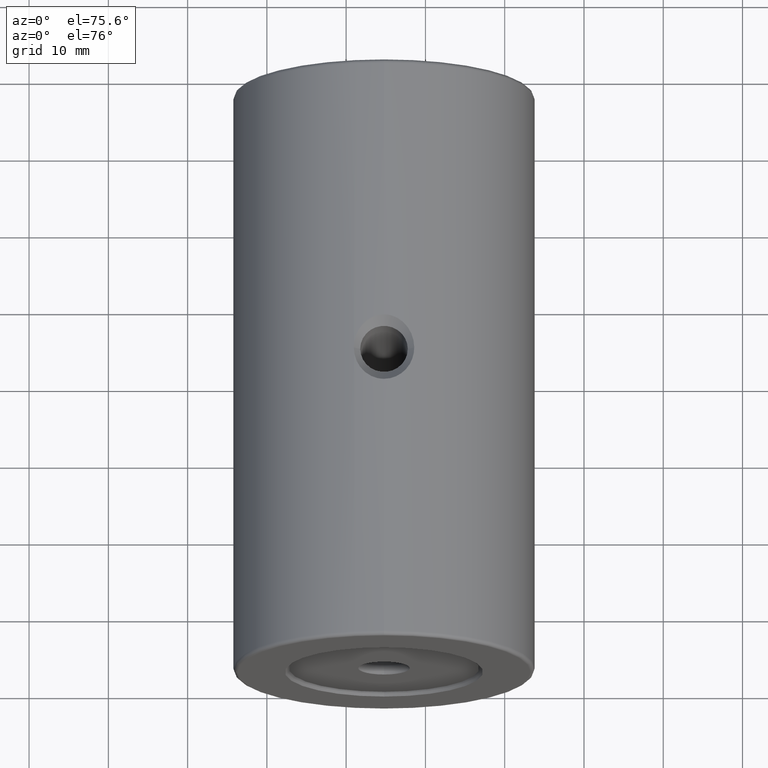
[diagram: clean part render]
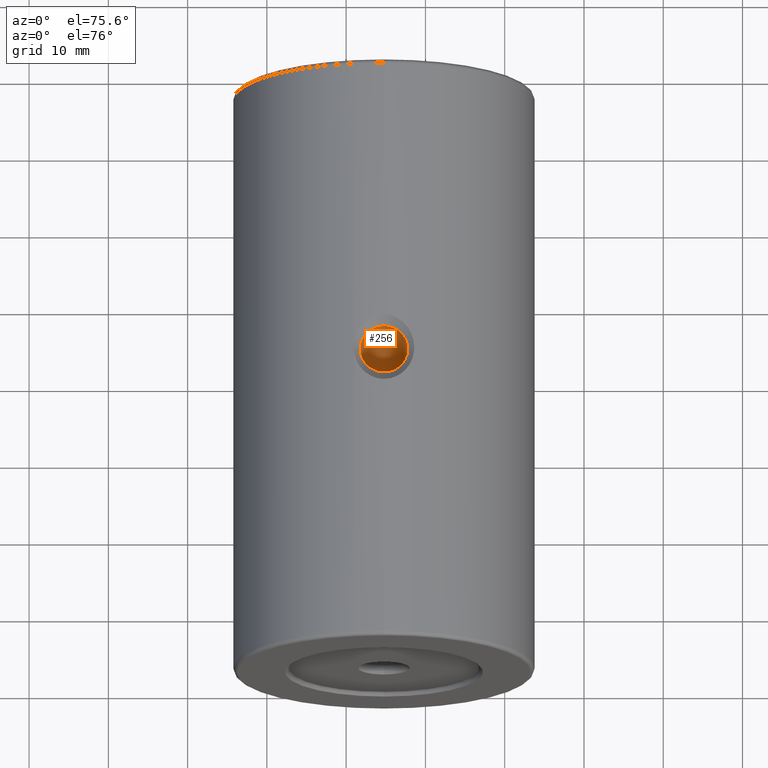
[diagram: same view with one face highlighted and labeled with its STEP entity id]
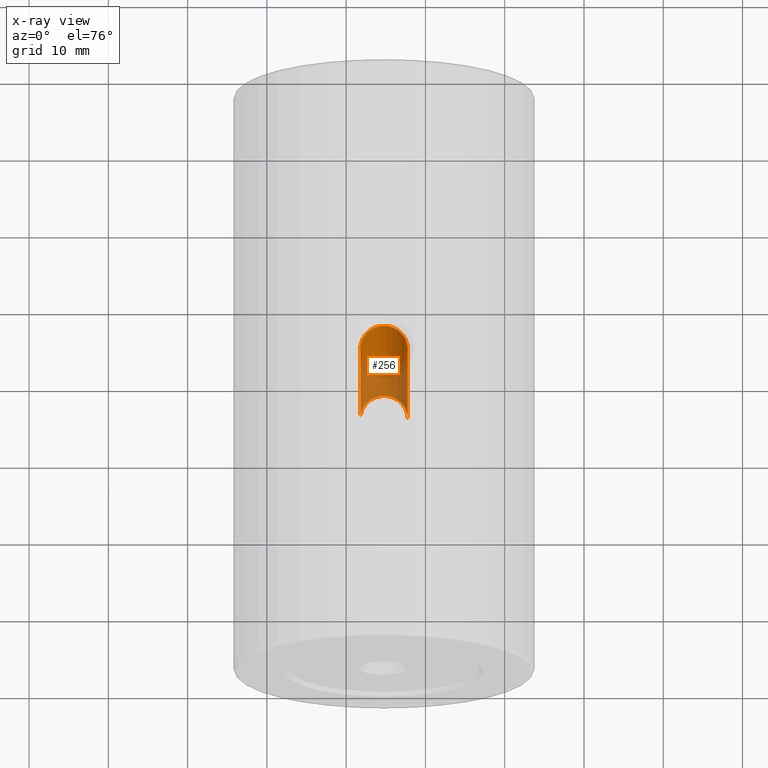
[diagram: x-ray of the same camera — body ghosted, the highlighted face saturated]
A machine part, auxiliary view. The second image highlights one B-rep face of the part: STEP entity #256.
The next image is the same camera in x-ray: the body ghosted, the highlighted face saturated — about 48% of this face is hidden behind the body in this view.
In plain terms, the highlighted cylindrical surface (edge-blend (fillet) strip) has radius 3 mm, axis along (-0, -0, 1).
Its self-contained STEP definition (entity closure, byte-faithful):
#1 = CARTESIAN_POINT ( 'NONE',  ( -85.22679983354142053, -4.261339991674281791, 381.0000000000000000 ) ) ;
#8 = DIRECTION ( 'NONE',  ( -0.0000000000000000000, -0.0000000000000000000, 1.000000000000000000 ) ) ;
#62 = ORIENTED_EDGE ( 'NONE', *, *, #846, .F. ) ;
#84 = ORIENTED_EDGE ( 'NONE', *, *, #340, .T. ) ;
#91 = ORIENTED_EDGE ( 'NONE', *, *, #684, .F. ) ;
#170 = LINE ( 'NONE', #808, #390 ) ;
#246 = VERTEX_POINT ( 'NONE', #627 ) ;
#254 = VERTEX_POINT ( 'NONE', #624 ) ;
#256 = ADVANCED_FACE ( 'NONE', ( #711 ), #469, .F. ) ;
#263 = AXIS2_PLACEMENT_3D ( 'NONE', #1, #553, #556 ) ;
#277 = CIRCLE ( 'NONE', #939, 3.000000000000002665 ) ;
#315 = CARTESIAN_POINT ( 'NONE',  ( -88.22679983354142053, -4.261339991674281791, 381.0000000000000000 ) ) ;
#340 = EDGE_CURVE ( 'NONE', #403, #246, #697, .T. ) ;
#351 = CARTESIAN_POINT ( 'NONE',  ( -88.22679983354142053, -4.261339991674281791, 382.2000000000000455 ) ) ;
#390 = VECTOR ( 'NONE', #420, 1000.000000000000000 ) ;
#403 = VERTEX_POINT ( 'NONE', #351 ) ;
#409 = EDGE_CURVE ( 'NONE', #246, #737, #170, .T. ) ;
#411 = ORIENTED_EDGE ( 'NONE', *, *, #409, .T. ) ;
#420 = DIRECTION ( 'NONE',  ( -0.0000000000000000000, -0.0000000000000000000, 1.000000000000000000 ) ) ;
#469 = CYLINDRICAL_SURFACE ( 'NONE', #263, 3.000000000000002665 ) ;
#553 = DIRECTION ( 'NONE',  ( -0.0000000000000000000, -0.0000000000000000000, 1.000000000000000000 ) ) ;
#556 = DIRECTION ( 'NONE',  ( 1.000000000000000000, 0.0000000000000000000, 0.0000000000000000000 ) ) ;
#575 = EDGE_LOOP ( 'NONE', ( #91, #84, #411, #62 ) ) ;
#586 = DIRECTION ( 'NONE',  ( 0.0000000000000000000, 0.0000000000000000000, -1.000000000000000000 ) ) ;
#624 = CARTESIAN_POINT ( 'NONE',  ( -88.22679983354142053, -4.261339991674283567, 417.8000000000000114 ) ) ;
#627 = CARTESIAN_POINT ( 'NONE',  ( -82.22679983354142053, -4.261339991674281791, 382.2000000000000455 ) ) ;
#643 = AXIS2_PLACEMENT_3D ( 'NONE', #818, #796, #813 ) ;
#684 = EDGE_CURVE ( 'NONE', #403, #254, #845, .T. ) ;
#697 = CIRCLE ( 'NONE', #643, 3.000000000000002665 ) ;
#711 = FACE_OUTER_BOUND ( 'NONE', #575, .T. ) ;
#737 = VERTEX_POINT ( 'NONE', #1014 ) ;
#796 = DIRECTION ( 'NONE',  ( -0.0000000000000000000, -0.0000000000000000000, -1.000000000000000000 ) ) ;
#799 = CARTESIAN_POINT ( 'NONE',  ( -85.22679983354142053, -4.261339991674283567, 417.8000000000000114 ) ) ;
#808 = CARTESIAN_POINT ( 'NONE',  ( -82.22679983354142053, -4.261339991674281791, 381.0000000000000000 ) ) ;
#813 = DIRECTION ( 'NONE',  ( -1.000000000000000000, 0.0000000000000000000, 0.0000000000000000000 ) ) ;
#818 = CARTESIAN_POINT ( 'NONE',  ( -85.22679983354142053, -4.261339991674283567, 382.2000000000000455 ) ) ;
#825 = VECTOR ( 'NONE', #8, 1000.000000000000000 ) ;
#845 = LINE ( 'NONE', #315, #825 ) ;
#846 = EDGE_CURVE ( 'NONE', #254, #737, #277, .T. ) ;
#939 = AXIS2_PLACEMENT_3D ( 'NONE', #799, #586, #961 ) ;
#961 = DIRECTION ( 'NONE',  ( 1.000000000000000000, 0.0000000000000000000, 0.0000000000000000000 ) ) ;
#1014 = CARTESIAN_POINT ( 'NONE',  ( -82.22679983354142053, -4.261339991674283567, 417.8000000000000114 ) ) ;